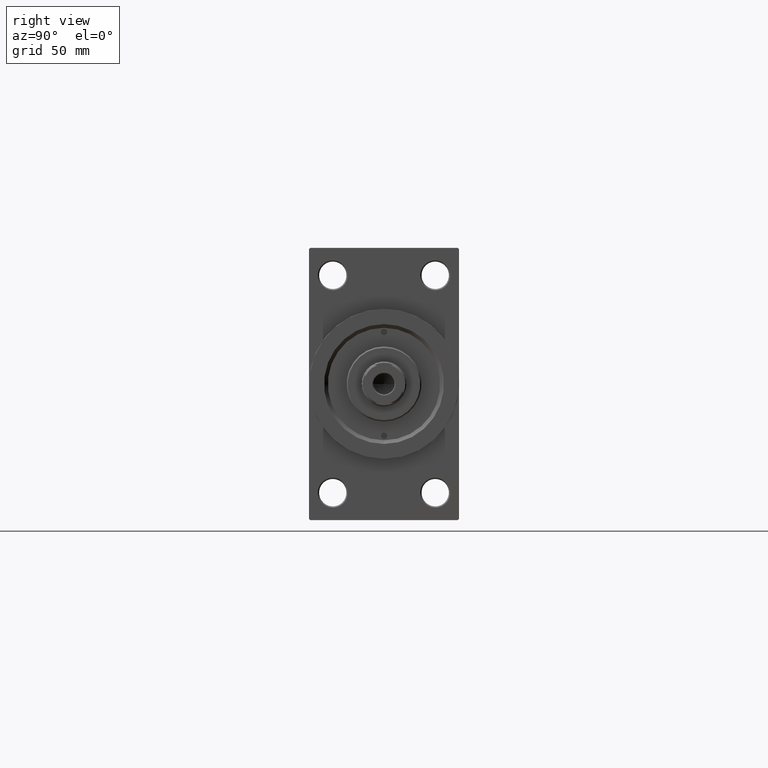
[diagram: clean part render]
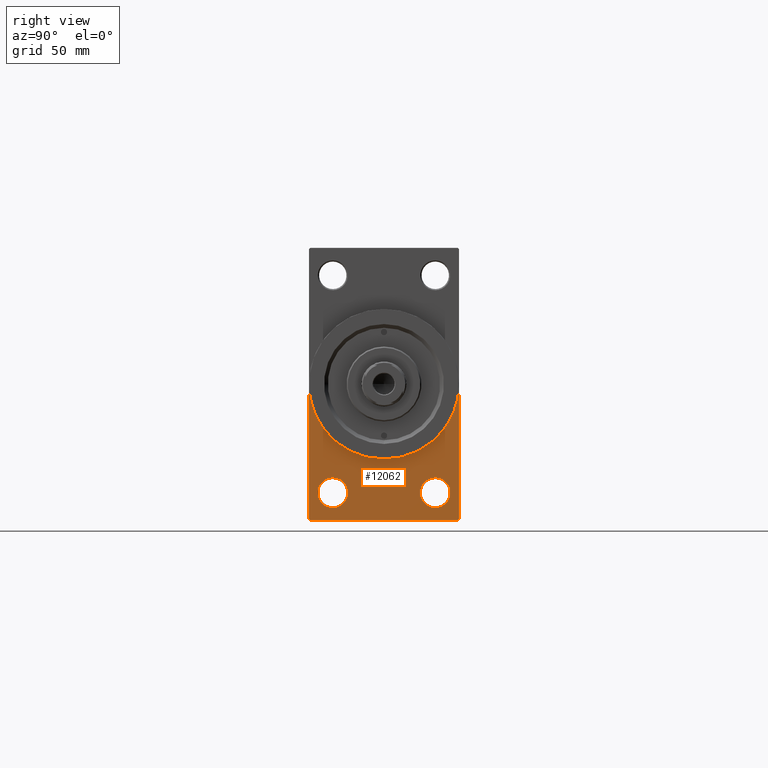
[diagram: same view with one face highlighted and labeled with its STEP entity id]
A machine part, right view. The second image highlights one B-rep face of the part: STEP entity #12062.
In plain terms, the highlighted planar face has unit normal (-1, 0, 0).
Its self-contained STEP definition (entity closure, byte-faithful):
#72 = CARTESIAN_POINT ( 'NONE',  ( 218.0000000000000284, 20.50000000000000000, -49.50000000000011369 ) ) ;
#1586 = VERTEX_POINT ( 'NONE', #30223 ) ;
#2020 = DIRECTION ( 'NONE',  ( 1.000000000000000000, 0.000000000000000000, 0.000000000000000000 ) ) ;
#2103 = DIRECTION ( 'NONE',  ( -1.000000000000000000, 0.000000000000000000, -0.000000000000000000 ) ) ;
#3518 = ORIENTED_EDGE ( 'NONE', *, *, #22687, .T. ) ;
#3667 = EDGE_CURVE ( 'NONE', #4200, #7185, #9451, .T. ) ;
#4200 = VERTEX_POINT ( 'NONE', #72 ) ;
#5044 = EDGE_CURVE ( 'NONE', #7185, #4200, #43927, .T. ) ;
#5351 = VECTOR ( 'NONE', #20984, 1000.000000000000000 ) ;
#5451 = CIRCLE ( 'NONE', #41470, 30.00000000000000000 ) ;
#6572 = AXIS2_PLACEMENT_3D ( 'NONE', #44241, #41112, #26018 ) ;
#6609 = LINE ( 'NONE', #22182, #43340 ) ;
#6869 = VECTOR ( 'NONE', #32534, 1000.000000000000000 ) ;
#6986 = VERTEX_POINT ( 'NONE', #29433 ) ;
#7185 = VERTEX_POINT ( 'NONE', #10444 ) ;
#9069 = VERTEX_POINT ( 'NONE', #43887 ) ;
#9314 = DIRECTION ( 'NONE',  ( -0.000000000000000000, 0.000000000000000000, 1.000000000000000000 ) ) ;
#9451 = CIRCLE ( 'NONE', #43896, 6.000000000000116351 ) ;
#9704 = EDGE_CURVE ( 'NONE', #10491, #26713, #34922, .T. ) ;
#10444 = CARTESIAN_POINT ( 'NONE',  ( 218.0000000000000284, 20.50000000000000000, -37.49999999999987921 ) ) ;
#10491 = VERTEX_POINT ( 'NONE', #36342 ) ;
#10879 = CARTESIAN_POINT ( 'NONE',  ( 218.0000000000000284, 29.99999999999999645, 54.49999999999999289 ) ) ;
#11189 = CARTESIAN_POINT ( 'NONE',  ( 218.0000000000000284, -30.00000000000000000, 54.50000000000000000 ) ) ;
#11236 = AXIS2_PLACEMENT_3D ( 'NONE', #39735, #36857, #25576 ) ;
#11425 = DIRECTION ( 'NONE',  ( -1.000000000000000000, 0.000000000000000000, -0.000000000000000000 ) ) ;
#11648 = DIRECTION ( 'NONE',  ( 0.000000000000000000, 0.7071067811865352493, -0.7071067811865597852 ) ) ;
#11933 = CARTESIAN_POINT ( 'NONE',  ( 218.0000000000000284, -20.50000000000000000, -49.50000000000011369 ) ) ;
#12062 = ADVANCED_FACE ( 'NONE', ( #39286, #21037, #20092 ), #35688, .F. ) ;
#12468 = DIRECTION ( 'NONE',  ( -1.000000000000000000, 0.000000000000000000, -0.000000000000000000 ) ) ;
#13220 = EDGE_CURVE ( 'NONE', #6986, #44846, #6609, .T. ) ;
#13541 = AXIS2_PLACEMENT_3D ( 'NONE', #37035, #18083, #32252 ) ;
#15001 = EDGE_CURVE ( 'NONE', #34798, #29609, #41860, .T. ) ;
#15229 = LINE ( 'NONE', #29867, #34443 ) ;
#16224 = EDGE_CURVE ( 'NONE', #29609, #34798, #43439, .T. ) ;
#17298 = CARTESIAN_POINT ( 'NONE',  ( 218.0000000000000284, -20.50000000000000000, -37.49999999999987921 ) ) ;
#17594 = DIRECTION ( 'NONE',  ( 0.000000000000000000, 0.000000000000000000, -1.000000000000000000 ) ) ;
#17891 = LINE ( 'NONE', #11189, #6869 ) ;
#18083 = DIRECTION ( 'NONE',  ( -1.000000000000000000, 0.000000000000000000, -0.000000000000000000 ) ) ;
#18373 = CARTESIAN_POINT ( 'NONE',  ( 218.0000000000000284, 20.50000000000000000, -43.50000000000000000 ) ) ;
#18456 = ORIENTED_EDGE ( 'NONE', *, *, #5044, .T. ) ;
#20092 = FACE_OUTER_BOUND ( 'NONE', #32120, .T. ) ;
#20723 = CARTESIAN_POINT ( 'NONE',  ( 218.0000000000000284, 0.000000000000000000, 0.000000000000000000 ) ) ;
#20984 = DIRECTION ( 'NONE',  ( 0.000000000000000000, -1.000000000000000000, -1.156482317317871478E-16 ) ) ;
#21037 = FACE_BOUND ( 'NONE', #27274, .T. ) ;
#22071 = EDGE_CURVE ( 'NONE', #40710, #9069, #15229, .T. ) ;
#22182 = CARTESIAN_POINT ( 'NONE',  ( 218.0000000000000284, 29.99999999999999645, -54.00000000000002132 ) ) ;
#22384 = LINE ( 'NONE', #10879, #44460 ) ;
#22628 = AXIS2_PLACEMENT_3D ( 'NONE', #28252, #2103, #9314 ) ;
#22687 = EDGE_CURVE ( 'NONE', #1586, #40710, #17891, .T. ) ;
#23744 = CARTESIAN_POINT ( 'NONE',  ( 218.0000000000000284, -30.00000000000000000, -53.99999999999995737 ) ) ;
#25576 = DIRECTION ( 'NONE',  ( 0.000000000000000000, 0.000000000000000000, 1.000000000000000000 ) ) ;
#26018 = DIRECTION ( 'NONE',  ( 0.000000000000000000, 0.000000000000000000, -1.000000000000000000 ) ) ;
#26713 = VERTEX_POINT ( 'NONE', #28068 ) ;
#27274 = EDGE_LOOP ( 'NONE', ( #41440, #18456 ) ) ;
#28068 = CARTESIAN_POINT ( 'NONE',  ( 218.0000000000000284, 30.00000000000000000, 0.000000000000000000 ) ) ;
#28252 = CARTESIAN_POINT ( 'NONE',  ( 218.0000000000000284, 0.000000000000000000, 0.000000000000000000 ) ) ;
#29433 = CARTESIAN_POINT ( 'NONE',  ( 218.0000000000000284, 29.50000000000002132, -54.49999999999999289 ) ) ;
#29609 = VERTEX_POINT ( 'NONE', #11933 ) ;
#29867 = CARTESIAN_POINT ( 'NONE',  ( 218.0000000000000284, -29.49999999999997513, -54.50000000000000000 ) ) ;
#30141 = ORIENTED_EDGE ( 'NONE', *, *, #9704, .F. ) ;
#30223 = CARTESIAN_POINT ( 'NONE',  ( 218.0000000000000284, -30.00000000000000000, 0.000000000000000000 ) ) ;
#31359 = EDGE_LOOP ( 'NONE', ( #42178, #45432 ) ) ;
#32120 = EDGE_LOOP ( 'NONE', ( #3518, #35561, #42202, #38639, #41649, #30141, #42104 ) ) ;
#32252 = DIRECTION ( 'NONE',  ( 0.000000000000000000, 0.000000000000000000, 1.000000000000000000 ) ) ;
#32534 = DIRECTION ( 'NONE',  ( 0.000000000000000000, 0.000000000000000000, -1.000000000000000000 ) ) ;
#34081 = EDGE_CURVE ( 'NONE', #6986, #9069, #46430, .T. ) ;
#34443 = VECTOR ( 'NONE', #11648, 1000.000000000000000 ) ;
#34798 = VERTEX_POINT ( 'NONE', #17298 ) ;
#34922 = CIRCLE ( 'NONE', #6572, 30.00000000000000000 ) ;
#35399 = CARTESIAN_POINT ( 'NONE',  ( 218.0000000000000284, 29.99999999999999645, -54.49999999999999289 ) ) ;
#35426 = EDGE_CURVE ( 'NONE', #26713, #44846, #22384, .T. ) ;
#35561 = ORIENTED_EDGE ( 'NONE', *, *, #22071, .T. ) ;
#35688 = PLANE ( 'NONE',  #22628 ) ;
#36342 = CARTESIAN_POINT ( 'NONE',  ( 218.0000000000000284, 3.673940397442059178E-15, -30.00000000000000000 ) ) ;
#36857 = DIRECTION ( 'NONE',  ( -1.000000000000000000, 0.000000000000000000, -0.000000000000000000 ) ) ;
#37015 = DIRECTION ( 'NONE',  ( 0.000000000000000000, 0.000000000000000000, -1.000000000000000000 ) ) ;
#37035 = CARTESIAN_POINT ( 'NONE',  ( 218.0000000000000284, -20.50000000000000000, -43.50000000000000000 ) ) ;
#38639 = ORIENTED_EDGE ( 'NONE', *, *, #13220, .T. ) ;
#39286 = FACE_BOUND ( 'NONE', #31359, .T. ) ;
#39735 = CARTESIAN_POINT ( 'NONE',  ( 218.0000000000000284, -20.50000000000000000, -43.50000000000000000 ) ) ;
#40186 = EDGE_CURVE ( 'NONE', #1586, #10491, #5451, .T. ) ;
#40710 = VERTEX_POINT ( 'NONE', #23744 ) ;
#41112 = DIRECTION ( 'NONE',  ( 1.000000000000000000, 0.000000000000000000, 0.000000000000000000 ) ) ;
#41440 = ORIENTED_EDGE ( 'NONE', *, *, #3667, .T. ) ;
#41470 = AXIS2_PLACEMENT_3D ( 'NONE', #20723, #2020, #17594 ) ;
#41649 = ORIENTED_EDGE ( 'NONE', *, *, #35426, .F. ) ;
#41860 = CIRCLE ( 'NONE', #11236, 6.000000000000116351 ) ;
#42104 = ORIENTED_EDGE ( 'NONE', *, *, #40186, .F. ) ;
#42178 = ORIENTED_EDGE ( 'NONE', *, *, #16224, .T. ) ;
#42202 = ORIENTED_EDGE ( 'NONE', *, *, #34081, .F. ) ;
#42612 = CARTESIAN_POINT ( 'NONE',  ( 218.0000000000000284, 29.99999999999999645, -54.00000000000002132 ) ) ;
#43340 = VECTOR ( 'NONE', #43768, 1000.000000000000114 ) ;
#43439 = CIRCLE ( 'NONE', #13541, 6.000000000000116351 ) ;
#43768 = DIRECTION ( 'NONE',  ( -0.000000000000000000, 0.7071067811865474617, 0.7071067811865474617 ) ) ;
#43887 = CARTESIAN_POINT ( 'NONE',  ( 218.0000000000000284, -29.49999999999997513, -54.50000000000000000 ) ) ;
#43896 = AXIS2_PLACEMENT_3D ( 'NONE', #45565, #12468, #44856 ) ;
#43927 = CIRCLE ( 'NONE', #46227, 6.000000000000116351 ) ;
#44044 = DIRECTION ( 'NONE',  ( 0.000000000000000000, 0.000000000000000000, 1.000000000000000000 ) ) ;
#44241 = CARTESIAN_POINT ( 'NONE',  ( 218.0000000000000284, 0.000000000000000000, 0.000000000000000000 ) ) ;
#44460 = VECTOR ( 'NONE', #37015, 1000.000000000000000 ) ;
#44846 = VERTEX_POINT ( 'NONE', #42612 ) ;
#44856 = DIRECTION ( 'NONE',  ( 0.000000000000000000, 0.000000000000000000, 1.000000000000000000 ) ) ;
#45432 = ORIENTED_EDGE ( 'NONE', *, *, #15001, .T. ) ;
#45565 = CARTESIAN_POINT ( 'NONE',  ( 218.0000000000000284, 20.50000000000000000, -43.50000000000000000 ) ) ;
#46227 = AXIS2_PLACEMENT_3D ( 'NONE', #18373, #11425, #44044 ) ;
#46430 = LINE ( 'NONE', #35399, #5351 ) ;